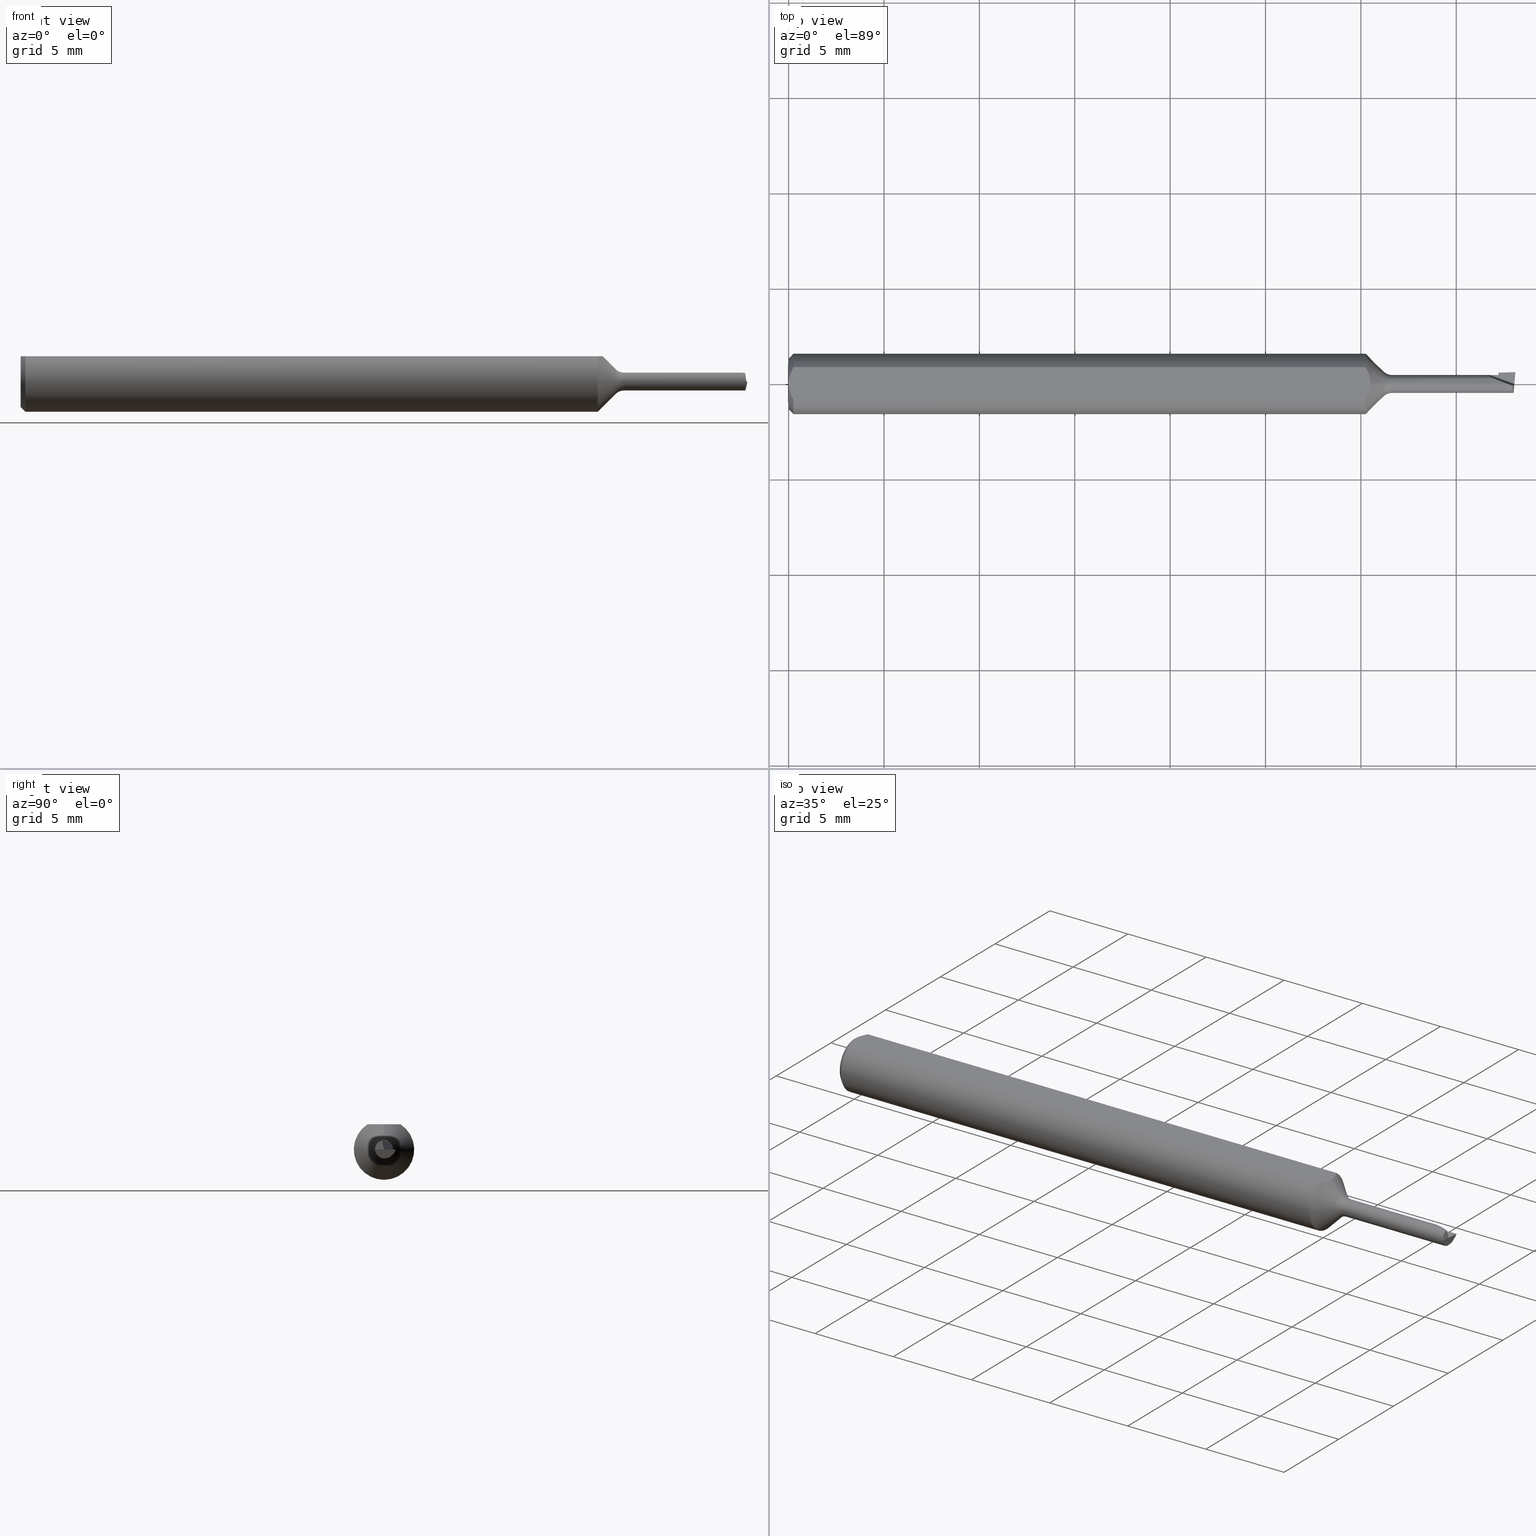
[diagram: canonical four-view strip — front | top / right | iso, engineering-drawing reading convention]
A machine part, canonical four-view strip (front | top / right | iso — engineering-drawing reading convention). The complete STEP part file that produces these views, byte-faithful:
ISO-10303-21;
HEADER;
FILE_DESCRIPTION (( 'STEP AP203' ),
    '1' );
FILE_NAME ('210052-MB045250.STEP',
    '2025-01-30T18:59:23',
    ( '' ),
    ( '' ),
    'SwSTEP 2.0',
    'SolidWorks 2024',
    '' );
FILE_SCHEMA (( 'CONFIG_CONTROL_DESIGN' ));
ENDSEC;

DATA;
#1 = PERSON_AND_ORGANIZATION ( #592, #594 ) ;
#2 = APPROVAL ( #385, 'UNSPECIFIED' ) ;
#3 = VECTOR ( 'NONE', #415, 39.37007874015748143 ) ;
#4 = AXIS2_PLACEMENT_3D ( 'NONE', #378, #527, #484 ) ;
#5 = ADVANCED_FACE ( 'NONE', ( #246 ), #192, .F. ) ;
#6 = CIRCLE ( 'NONE', #126, 0.01849999999999999908 ) ;
#7 = DIRECTION ( 'NONE',  ( -1.000000000000000000, -0.000000000000000000, -0.000000000000000000 ) ) ;
#8 = DIRECTION ( 'NONE',  ( -1.000000000000000000, -0.000000000000000000, -0.000000000000000000 ) ) ;
#9 = APPLICATION_CONTEXT ( 'configuration controlled 3d designs of mechanical parts and assemblies' ) ;
#10 = CARTESIAN_POINT ( 'NONE',  ( 1.496776916841381366, -0.001529360825625118410, 0.006704173061983520650 ) ) ;
#11 = VERTEX_POINT ( 'NONE', #97 ) ;
#12 = LINE ( 'NONE', #172, #50 ) ;
#13 = EDGE_LOOP ( 'NONE', ( #211, #333, #507, #559 ) ) ;
#14 = FACE_OUTER_BOUND ( 'NONE', #380, .T. ) ;
#15 = ORIENTED_EDGE ( 'NONE', *, *, #339, .F. ) ;
#16 = FACE_OUTER_BOUND ( 'NONE', #358, .T. ) ;
#17 = LINE ( 'NONE', #56, #162 ) ;
#18 = ORIENTED_EDGE ( 'NONE', *, *, #99, .T. ) ;
#19 = CARTESIAN_POINT ( 'NONE',  ( 1.245355339059327493, 0.000000000000000000, 0.000000000000000000 ) ) ;
#20 = DIRECTION ( 'NONE',  ( -1.000000000000000000, -0.000000000000000000, -0.000000000000000000 ) ) ;
#21 = EDGE_CURVE ( 'NONE', #289, #505, #49, .T. ) ;
#22 = ORIENTED_EDGE ( 'NONE', *, *, #72, .T. ) ;
#23 = VECTOR ( 'NONE', #586, 39.37007874015748143 ) ;
#24 = PERSON_AND_ORGANIZATION ( #592, #594 ) ;
#25 = LINE ( 'NONE', #474, #285 ) ;
#26 = DIRECTION ( 'NONE',  ( 1.000000000000000000, 0.000000000000000000, 0.000000000000000000 ) ) ;
#27 = EDGE_CURVE ( 'NONE', #630, #31, #138, .T. ) ;
#28 = ORIENTED_EDGE ( 'NONE', *, *, #291, .F. ) ;
#29 = CARTESIAN_POINT ( 'NONE',  ( 1.227677669529663618, 3.162323435702253921E-18, -0.02582233047033631948 ) ) ;
#30 = CARTESIAN_POINT ( 'NONE',  ( -1.099542139246802830E-15, 0.005954997531773979953, 0.05235000000000002152 ) ) ;
#31 = VERTEX_POINT ( 'NONE', #248 ) ;
#32 = AXIS2_PLACEMENT_3D ( 'NONE', #274, #622, #468 ) ;
#33 = DIRECTION ( 'NONE',  ( 1.000000000000000000, 0.000000000000000000, 0.000000000000000000 ) ) ;
#34 = CARTESIAN_POINT ( 'NONE',  ( 1.496684692676496731, 0.01221299988732022293, -0.01588014588061767429 ) ) ;
#35 = ORIENTED_EDGE ( 'NONE', *, *, #280, .T. ) ;
#36 = AXIS2_PLACEMENT_3D ( 'NONE', #128, #83, #337 ) ;
#37 = DIRECTION ( 'NONE',  ( 1.000000000000000000, 0.000000000000000000, 0.000000000000000000 ) ) ;
#38 = PLANE ( 'NONE',  #640 ) ;
#39 = LINE ( 'NONE', #387, #23 ) ;
#40 = ORIENTED_EDGE ( 'NONE', *, *, #602, .F. ) ;
#41 = ADVANCED_FACE ( 'NONE', ( #543 ), #400, .T. ) ;
#42 = PERSON_AND_ORGANIZATION ( #592, #594 ) ;
#43 = ORIENTED_EDGE ( 'NONE', *, *, #405, .T. ) ;
#44 = CARTESIAN_POINT ( 'NONE',  ( 1.498722803693174566, 0.02118925606886698162, -0.006999999999999996676 ) ) ;
#45 = AXIS2_PLACEMENT_3D ( 'NONE', #619, #123, #227 ) ;
#46 = PERSON_AND_ORGANIZATION_ROLE ( 'design_owner' ) ;
#47 = DIRECTION ( 'NONE',  ( 0.000000000000000000, -0.7073221891495888869, -0.7068913075831623205 ) ) ;
#48 = SECURITY_CLASSIFICATION ( '', '', #615 ) ;
#49 = LINE ( 'NONE', #438, #309 ) ;
#50 = VECTOR ( 'NONE', #102, 39.37007874015748143 ) ;
#51 = AXIS2_PLACEMENT_3D ( 'NONE', #122, #323, #521 ) ;
#52 = DIRECTION ( 'NONE',  ( 0.03162968562512429027, -0.9057556888204039147, 0.4226182617407007736 ) ) ;
#53 = EDGE_CURVE ( 'NONE', #552, #462, #114, .T. ) ;
#54 = CIRCLE ( 'NONE', #553, 0.06235000000000000264 ) ;
#55 = CARTESIAN_POINT ( 'NONE',  ( 1.227677669529663618, 0.000000000000000000, 0.000000000000000000 ) ) ;
#56 = CARTESIAN_POINT ( 'NONE',  ( 1.465000000000000080, 0.02275535369517672074, -0.004257947521761099377 ) ) ;
#57 = EDGE_LOOP ( 'NONE', ( #68, #432, #398, #562, #35 ) ) ;
#58 = CIRCLE ( 'NONE', #85, 0.05235000000000033377 ) ;
#59 = CARTESIAN_POINT ( 'NONE',  ( 1.196488788636946854, 0.02320328458619745973, 0.05235000000000002152 ) ) ;
#60 = ADVANCED_FACE ( 'NONE', ( #346 ), #205, .F. ) ;
#61 = ORIENTED_EDGE ( 'NONE', *, *, #408, .T. ) ;
#62 = DIRECTION ( 'NONE',  ( -0.000000000000000000, 1.000000000000000000, 1.150753554054429375E-16 ) ) ;
#63 = ORIENTED_EDGE ( 'NONE', *, *, #368, .F. ) ;
#64 = APPROVAL ( #412, 'UNSPECIFIED' ) ;
#65 = APPROVAL_DATE_TIME ( #169, #64 ) ;
#66 = DIRECTION ( 'NONE',  ( 0.000000000000000000, -1.000000000000000000, 0.000000000000000000 ) ) ;
#67 = DIRECTION ( 'NONE',  ( 0.000000000000000000, 0.000000000000000000, 1.000000000000000000 ) ) ;
#68 = ORIENTED_EDGE ( 'NONE', *, *, #457, .T. ) ;
#69 = DIRECTION ( 'NONE',  ( -1.000000000000000000, -0.000000000000000000, -0.000000000000000000 ) ) ;
#70 = DIRECTION ( 'NONE',  ( 0.000000000000000000, 0.000000000000000000, 1.000000000000000000 ) ) ;
#71 = VERTEX_POINT ( 'NONE', #442 ) ;
#72 = EDGE_CURVE ( 'NONE', #582, #630, #560, .T. ) ;
#73 = DIRECTION ( 'NONE',  ( 0.000000000000000000, 0.000000000000000000, -1.000000000000000000 ) ) ;
#74 = DIRECTION ( 'NONE',  ( 0.000000000000000000, 0.000000000000000000, -1.000000000000000000 ) ) ;
#75 = ORIENTED_EDGE ( 'NONE', *, *, #255, .F. ) ;
#76 = PERSON_AND_ORGANIZATION ( #592, #594 ) ;
#77 = CARTESIAN_POINT ( 'NONE',  ( 1.497855625440970062, -1.031336641982391536E-05, 2.046381266477860700E-16 ) ) ;
#78 = CARTESIAN_POINT ( 'NONE',  ( 1.496237987468385322, -0.01849999999999997133, 2.346737396167181165E-16 ) ) ;
#79 = CC_DESIGN_APPROVAL ( #64, ( #48 ) ) ;
#80 = ORIENTED_EDGE ( 'NONE', *, *, #450, .T. ) ;
#81 = VECTOR ( 'NONE', #145, 39.37007874015748143 ) ;
#82 = PLANE ( 'NONE',  #345 ) ;
#83 = DIRECTION ( 'NONE',  ( -1.000000000000000000, -0.000000000000000000, -0.000000000000000000 ) ) ;
#84 = EDGE_LOOP ( 'NONE', ( #355, #383, #220, #390, #40, #201 ) ) ;
#85 = AXIS2_PLACEMENT_3D ( 'NONE', #612, #361, #551 ) ;
#86 = EDGE_CURVE ( 'NONE', #549, #319, #590, .T. ) ;
#87 = APPROVAL_ROLE ( '' ) ;
#88 = CARTESIAN_POINT ( 'NONE',  ( 1.245355339059327493, 0.000000000000000000, 0.000000000000000000 ) ) ;
#89 = CARTESIAN_POINT ( 'NONE',  ( 0.001063697276021357847, 0.01189177144351693735, 0.05235000000000001458 ) ) ;
#90 = EDGE_LOOP ( 'NONE', ( #624, #175, #130, #28 ) ) ;
#91 = ORIENTED_EDGE ( 'NONE', *, *, #53, .F. ) ;
#92 = LENGTH_MEASURE_WITH_UNIT ( LENGTH_MEASURE( 0.02539999999999999897 ), #473 );
#93 = DIRECTION ( 'NONE',  ( 1.000000000000000000, 0.000000000000000000, 0.000000000000000000 ) ) ;
#94 = CALENDAR_DATE ( 2025, 30, 1 ) ;
#95 = ADVANCED_FACE ( 'NONE', ( #495 ), #98, .F. ) ;
#96 = CARTESIAN_POINT ( 'NONE',  ( 0.000000000000000000, 0.000000000000000000, 0.000000000000000000 ) ) ;
#97 = CARTESIAN_POINT ( 'NONE',  ( 1.494952902551172302, -0.004097954674002863944, 0.01804042038007478907 ) ) ;
#98 = PLANE ( 'NONE',  #203 ) ;
#99 = EDGE_CURVE ( 'NONE', #237, #289, #296, .T. ) ;
#100 = CARTESIAN_POINT ( 'NONE',  ( 1.495388239854692269, 0.001619057209963981015, -0.01849999999999998521 ) ) ;
#101 = ADVANCED_FACE ( 'NONE', ( #597 ), #164, .T. ) ;
#102 = DIRECTION ( 'NONE',  ( -1.000000000000000000, -0.000000000000000000, -0.000000000000000000 ) ) ;
#103 = ORIENTED_EDGE ( 'NONE', *, *, #222, .T. ) ;
#104 = ADVANCED_FACE ( 'NONE', ( #598 ), #642, .F. ) ;
#105 = DIRECTION ( 'NONE',  ( -1.000000000000000000, -0.000000000000000000, -0.000000000000000000 ) ) ;
#106 = VERTEX_POINT ( 'NONE', #44 ) ;
#107 = CYLINDRICAL_SURFACE ( 'NONE', #221, 0.06235000000000000264 ) ;
#108 = ADVANCED_FACE ( 'NONE', ( #208 ), #550, .F. ) ;
#109 = VECTOR ( 'NONE', #522, 39.37007874015748143 ) ;
#110 = VERTEX_POINT ( 'NONE', #391 ) ;
#111 = PERSON_AND_ORGANIZATION_ROLE ( 'design_supplier' ) ;
#112 = DIRECTION ( 'NONE',  ( -1.000000000000000000, -0.000000000000000000, -0.000000000000000000 ) ) ;
#113 = VERTEX_POINT ( 'NONE', #540 ) ;
#114 = B_SPLINE_CURVE_WITH_KNOTS ( 'NONE', 3,
 ( #293, #396, #146, #250, #547, #593 ),
 .UNSPECIFIED., .F., .F.,
 ( 4, 2, 4 ),
 ( 0.001820301466808207621, 0.002269751589840481119, 0.002719201712872754834 ),
 .UNSPECIFIED. ) ;
#115 = DIRECTION ( 'NONE',  ( 0.000000000000000000, 0.000000000000000000, 1.000000000000000000 ) ) ;
#116 = DIRECTION ( 'NONE',  ( -0.7071067811865451302, 8.659560562354962440E-17, -0.7071067811865499042 ) ) ;
#117 = ORIENTED_EDGE ( 'NONE', *, *, #255, .T. ) ;
#118 = EDGE_CURVE ( 'NONE', #630, #113, #12, .T. ) ;
#119 = DIRECTION ( 'NONE',  ( 0.000000000000000000, 0.000000000000000000, -1.000000000000000000 ) ) ;
#120 = DIRECTION ( 'NONE',  ( -0.08715574274765616747, -0.9961946980917456562, -1.468785387815777068E-15 ) ) ;
#121 = ORIENTED_EDGE ( 'NONE', *, *, #21, .T. ) ;
#122 = CARTESIAN_POINT ( 'NONE',  ( 1.465000000000000080, 0.01849999999999999908, 0.000000000000000000 ) ) ;
#123 = DIRECTION ( 'NONE',  ( 0.000000000000000000, 0.2588190451025212391, -0.9659258262890682012 ) ) ;
#124 = DIRECTION ( 'NONE',  ( 0.000000000000000000, 0.000000000000000000, -1.000000000000000000 ) ) ;
#125 = EDGE_LOOP ( 'NONE', ( #22, #273, #209, #574, #18, #121, #516, #134 ) ) ;
#126 = AXIS2_PLACEMENT_3D ( 'NONE', #282, #370, #478 ) ;
#127 = CARTESIAN_POINT ( 'NONE',  ( 1.227677669529663618, 0.000000000000000000, 0.02582233047033631948 ) ) ;
#128 = CARTESIAN_POINT ( 'NONE',  ( 1.191150000000000153, 0.000000000000000000, 0.000000000000000000 ) ) ;
#129 = LOCAL_TIME ( 10, 59, 23.00000000000000000, #423 ) ;
#130 = ORIENTED_EDGE ( 'NONE', *, *, #99, .F. ) ;
#131 = CARTESIAN_POINT ( 'NONE',  ( 0.000000000000000000, 0.000000000000000000, 0.000000000000000000 ) ) ;
#132 = LINE ( 'NONE', #616, #467 ) ;
#133 = DIRECTION ( 'NONE',  ( 1.000000000000000000, 0.000000000000000000, 0.000000000000000000 ) ) ;
#134 = ORIENTED_EDGE ( 'NONE', *, *, #234, .F. ) ;
#135 = VECTOR ( 'NONE', #366, 39.37007874015748143 ) ;
#136 = COORDINATED_UNIVERSAL_TIME_OFFSET ( 8, 0, .BEHIND. ) ;
#137 = CARTESIAN_POINT ( 'NONE',  ( 0.000000000000000000, 0.000000000000000000, -0.05235000000000033377 ) ) ;
#138 =( BOUNDED_CURVE ( )  B_SPLINE_CURVE ( 3, ( #197, #253, #393, #200 ),
 .UNSPECIFIED., .F., .T. ) 
 B_SPLINE_CURVE_WITH_KNOTS ( ( 4, 4 ),
 ( 5.728084607564617237, 7.298880934359527117 ),
 .UNSPECIFIED. ) 
 CURVE ( )  GEOMETRIC_REPRESENTATION_ITEM ( )  RATIONAL_B_SPLINE_CURVE ( ( 1.000000000000000000, 0.8047378541243618288, 0.8047378541243618288, 1.000000000000000000 ) ) 
 REPRESENTATION_ITEM ( '' )  );
#139 = ORIENTED_EDGE ( 'NONE', *, *, #602, .T. ) ;
#140 = EDGE_CURVE ( 'NONE', #608, #448, #17, .T. ) ;
#141 = APPROVAL_STATUS ( 'not_yet_approved' ) ;
#142 = DIRECTION ( 'NONE',  ( -1.000000000000000000, -0.000000000000000000, -0.000000000000000000 ) ) ;
#143 = EDGE_CURVE ( 'NONE', #367, #352, #354, .T. ) ;
#144 =( CONVERSION_BASED_UNIT ( 'INCH', #92 ) LENGTH_UNIT ( ) NAMED_UNIT ( #411 ) );
#145 = DIRECTION ( 'NONE',  ( -0.7071067811865451302, 0.000000000000000000, 0.7071067811865499042 ) ) ;
#146 = CARTESIAN_POINT ( 'NONE',  ( 0.001055043921644571291, -0.01186408073217194367, 0.05235000000000002152 ) ) ;
#147 = PRODUCT_DEFINITION_SHAPE ( 'NONE', 'NONE',  #214 ) ;
#148 = CARTESIAN_POINT ( 'NONE',  ( 1.438508876927481195, 0.01849999999999999908, 0.01083704909609776133 ) ) ;
#149 = CARTESIAN_POINT ( 'NONE',  ( 1.483333815684383605, 0.000000000000000000, 0.01849999999999999215 ) ) ;
#150 = ADVANCED_FACE ( 'NONE', ( #257 ), #107, .T. ) ;
#151 = ORIENTED_EDGE ( 'NONE', *, *, #195, .T. ) ;
#152 = B_SPLINE_CURVE_WITH_KNOTS ( 'NONE', 3,
 ( #275, #469, #465, #89, #30, #581 ),
 .UNSPECIFIED., .F., .F.,
 ( 4, 2, 4 ),
 ( 0.0009229516234078821539, 0.001371626545108044996, 0.001820301466808207621 ),
 .UNSPECIFIED. ) ;
#153 = CARTESIAN_POINT ( 'NONE',  ( 1.245355339059327493, 0.000000000000000000, 0.000000000000000000 ) ) ;
#154 = ORIENTED_EDGE ( 'NONE', *, *, #341, .F. ) ;
#155 = AXIS2_PLACEMENT_3D ( 'NONE', #177, #321, #431 ) ;
#156 = LINE ( 'NONE', #307, #251 ) ;
#157 = EDGE_LOOP ( 'NONE', ( #480, #161, #217, #300 ) ) ;
#158 = EDGE_CURVE ( 'NONE', #621, #11, #224, .T. ) ;
#159 = PRODUCT_DEFINITION_FORMATION_WITH_SPECIFIED_SOURCE ( 'ANY', '', #546, .NOT_KNOWN. ) ;
#160 = CARTESIAN_POINT ( 'NONE',  ( 1.201150000000000162, -1.477726050556335798E-21, 0.05235000000000001458 ) ) ;
#161 = ORIENTED_EDGE ( 'NONE', *, *, #247, .T. ) ;
#162 = VECTOR ( 'NONE', #305, 39.37007874015748854 ) ;
#163 = PERSON_AND_ORGANIZATION_ROLE ( 'creator' ) ;
#164 = CONICAL_SURFACE ( 'NONE', #625, 0.02582233047033630560, 0.7853981633974517207 ) ;
#165 = CARTESIAN_POINT ( 'NONE',  ( 1.191150000000000153, 0.03386738844375220686, 0.05235000000000000070 ) ) ;
#166 = CIRCLE ( 'NONE', #4, 0.06235000000000000264 ) ;
#167 = EDGE_LOOP ( 'NONE', ( #329, #15, #556, #259, #363 ) ) ;
#168 = LOCAL_TIME ( 10, 59, 23.00000000000000000, #286 ) ;
#169 = DATE_AND_TIME ( #508, #299 ) ;
#170 = DIRECTION ( 'NONE',  ( 0.000000000000000000, 0.000000000000000000, 1.000000000000000000 ) ) ;
#171 = CARTESIAN_POINT ( 'NONE',  ( 1.191150000000000153, -0.03386738844375220686, 0.05235000000000000070 ) ) ;
#172 = CARTESIAN_POINT ( 'NONE',  ( 0.000000000000000000, 2.265596578422602268E-18, -0.01849999999999999215 ) ) ;
#173 = CIRCLE ( 'NONE', #536, 0.05235000000000033377 ) ;
#174 = EDGE_CURVE ( 'NONE', #237, #426, #565, .T. ) ;
#175 = ORIENTED_EDGE ( 'NONE', *, *, #599, .F. ) ;
#176 = CARTESIAN_POINT ( 'NONE',  ( 0.000000000000000000, 0.000000000000000000, 0.000000000000000000 ) ) ;
#177 = CARTESIAN_POINT ( 'NONE',  ( 1.491155917282976695, 0.03518992960932577213, 0.06931876481191026618 ) ) ;
#178 = ORIENTED_EDGE ( 'NONE', *, *, #140, .F. ) ;
#179 = CARTESIAN_POINT ( 'NONE',  ( 1.201149999999999718, -0.005924734429433293689, 0.05235000000000002152 ) ) ;
#180 = LINE ( 'NONE', #379, #618 ) ;
#181 = ORIENTED_EDGE ( 'NONE', *, *, #341, .T. ) ;
#182 = CARTESIAN_POINT ( 'NONE',  ( 1.201150000000000162, -1.477726050556335798E-21, 0.05235000000000001458 ) ) ;
#183 = DIRECTION ( 'NONE',  ( -0.000000000000000000, 0.9659258262890682012, 0.2588190451025212946 ) ) ;
#184 = ORIENTED_EDGE ( 'NONE', *, *, #626, .T. ) ;
#185 = CC_DESIGN_DATE_AND_TIME_ASSIGNMENT ( #472, #226, ( #48 ) ) ;
#186 = DIRECTION ( 'NONE',  ( -1.000000000000000000, -0.000000000000000000, -0.000000000000000000 ) ) ;
#187 = CARTESIAN_POINT ( 'NONE',  ( 1.245355339059327493, 0.000000000000000000, 0.01849999999999998174 ) ) ;
#188 = ORIENTED_EDGE ( 'NONE', *, *, #489, .F. ) ;
#189 = DATE_TIME_ROLE ( 'creation_date' ) ;
#190 = FACE_OUTER_BOUND ( 'NONE', #538, .T. ) ;
#191 = DIRECTION ( 'NONE',  ( 0.1201445221440181205, 0.9589290576775757469, 0.2569442666034444378 ) ) ;
#192 = PLANE ( 'NONE',  #357 ) ;
#193 = APPROVAL_DATE_TIME ( #243, #548 ) ;
#194 = DIRECTION ( 'NONE',  ( -1.000000000000000000, 0.000000000000000000, -0.000000000000000000 ) ) ;
#195 = EDGE_CURVE ( 'NONE', #476, #113, #359, .T. ) ;
#196 = VECTOR ( 'NONE', #62, 39.37007874015748143 ) ;
#197 = CARTESIAN_POINT ( 'NONE',  ( 1.495246590703220857, 2.265596578422602268E-18, -0.01849999999999999215 ) ) ;
#198 = CC_DESIGN_SECURITY_CLASSIFICATION ( #48, ( #159 ) ) ;
#199 = DATE_AND_TIME ( #336, #607 ) ;
#200 = CARTESIAN_POINT ( 'NONE',  ( 1.496237987468385322, -0.01849999999999997133, 2.346737396167181165E-16 ) ) ;
#201 = ORIENTED_EDGE ( 'NONE', *, *, #269, .F. ) ;
#202 = UNCERTAINTY_MEASURE_WITH_UNIT (LENGTH_MEASURE( 1.000000000000000082E-05 ), #144, 'distance_accuracy_value', 'NONE');
#203 = AXIS2_PLACEMENT_3D ( 'NONE', #490, #252, #444 ) ;
#204 = EDGE_CURVE ( 'NONE', #476, #634, #310, .T. ) ;
#205 = PLANE ( 'NONE',  #330 ) ;
#206 = AXIS2_PLACEMENT_3D ( 'NONE', #485, #20, #70 ) ;
#207 = PRODUCT_RELATED_PRODUCT_CATEGORY ( 'detail', '', ( #546 ) ) ;
#208 = FACE_OUTER_BOUND ( 'NONE', #84, .T. ) ;
#209 = ORIENTED_EDGE ( 'NONE', *, *, #503, .F. ) ;
#210 = DIRECTION ( 'NONE',  ( -1.000000000000000000, 0.000000000000000000, 0.000000000000000000 ) ) ;
#211 = ORIENTED_EDGE ( 'NONE', *, *, #421, .F. ) ;
#212 = CARTESIAN_POINT ( 'NONE',  ( 1.560200597524541877, 0.004788152334396648772, -0.01786962778634774984 ) ) ;
#213 = ORIENTED_EDGE ( 'NONE', *, *, #450, .F. ) ;
#214 = PRODUCT_DEFINITION ( 'UNKNOWN', '', #159, #644 ) ;
#215 = AXIS2_PLACEMENT_3D ( 'NONE', #266, #66, #73 ) ;
#216 = DIRECTION ( 'NONE',  ( 0.000000000000000000, -1.224646799147353207E-16, 1.000000000000000000 ) ) ;
#217 = ORIENTED_EDGE ( 'NONE', *, *, #481, .F. ) ;
#218 = PERSON_AND_ORGANIZATION ( #592, #594 ) ;
#219 = CARTESIAN_POINT ( 'NONE',  ( 1.483333815684383605, 0.000000000000000000, 0.01849999999999999215 ) ) ;
#220 = ORIENTED_EDGE ( 'NONE', *, *, #53, .T. ) ;
#221 = AXIS2_PLACEMENT_3D ( 'NONE', #502, #606, #401 ) ;
#222 = EDGE_CURVE ( 'NONE', #549, #476, #583, .T. ) ;
#223 = FACE_OUTER_BOUND ( 'NONE', #13, .T. ) ;
#224 = LINE ( 'NONE', #10, #135 ) ;
#225 = ORIENTED_EDGE ( 'NONE', *, *, #402, .T. ) ;
#226 = DATE_TIME_ROLE ( 'classification_date' ) ;
#227 = DIRECTION ( 'NONE',  ( 0.000000000000000000, 0.9659258262890682012, 0.2588190451025212391 ) ) ;
#228 = CARTESIAN_POINT ( 'NONE',  ( 1.465000000000000080, 0.02242357863109861044, -0.001830709982111567661 ) ) ;
#229 = EDGE_LOOP ( 'NONE', ( #284, #470, #459, #422 ) ) ;
#230 = SHAPE_DEFINITION_REPRESENTATION ( #147, #487 ) ;
#231 = CARTESIAN_POINT ( 'NONE',  ( 1.227677669529663618, 0.000000000000000000, 0.000000000000000000 ) ) ;
#232 = FACE_OUTER_BOUND ( 'NONE', #496, .T. ) ;
#233 = ORIENTED_EDGE ( 'NONE', *, *, #143, .T. ) ;
#234 = EDGE_CURVE ( 'NONE', #582, #486, #452, .T. ) ;
#235 = LINE ( 'NONE', #569, #295 ) ;
#236 = CARTESIAN_POINT ( 'NONE',  ( 1.494952902551172302, -0.004097954674002863944, 0.01804042038007478907 ) ) ;
#237 = VERTEX_POINT ( 'NONE', #506 ) ;
#238 =( NAMED_UNIT ( * ) PLANE_ANGLE_UNIT ( ) SI_UNIT ( $, .RADIAN. ) );
#239 = CARTESIAN_POINT ( 'NONE',  ( 0.01000000000000840841, -0.03386738844395137393, 0.05235000000000001458 ) ) ;
#240 = CARTESIAN_POINT ( 'NONE',  ( 1.465000000000000080, 0.02204888731940269492, -0.01324462778634774400 ) ) ;
#241 = ORIENTED_EDGE ( 'NONE', *, *, #421, .T. ) ;
#242 = AXIS2_PLACEMENT_3D ( 'NONE', #561, #112, #67 ) ;
#243 = DATE_AND_TIME ( #436, #168 ) ;
#244 = CARTESIAN_POINT ( 'NONE',  ( 1.495443673491787084, 0.02831007852008725692, -0.03465938240595493186 ) ) ;
#245 = DIRECTION ( 'NONE',  ( -0.08715574274766034468, -0.9961946980917453232, -1.182878904194726503E-16 ) ) ;
#246 = FACE_OUTER_BOUND ( 'NONE', #604, .T. ) ;
#247 = EDGE_CURVE ( 'NONE', #110, #106, #156, .T. ) ;
#248 = CARTESIAN_POINT ( 'NONE',  ( 1.496237987468385322, -0.01849999999999997133, 2.346737396167181165E-16 ) ) ;
#249 = AXIS2_PLACEMENT_3D ( 'NONE', #231, #69, #320 ) ;
#250 = CARTESIAN_POINT ( 'NONE',  ( 0.004679365186825695105, -0.02325953974091124477, 0.05235000000000000764 ) ) ;
#251 = VECTOR ( 'NONE', #555, 39.37007874015747433 ) ;
#252 = DIRECTION ( 'NONE',  ( -0.3303660895493409355, -0.9076733711903737234, -0.2588190451025175753 ) ) ;
#253 = CARTESIAN_POINT ( 'NONE',  ( 1.494298471761238423, -0.01083704909609781511, -0.01850000000000000949 ) ) ;
#254 = VECTOR ( 'NONE', #183, 39.37007874015747433 ) ;
#255 = EDGE_CURVE ( 'NONE', #456, #552, #58, .T. ) ;
#256 = CARTESIAN_POINT ( 'NONE',  ( 0.000000000000000000, 0.000000000000000000, 0.01849999999999999215 ) ) ;
#257 = FACE_OUTER_BOUND ( 'NONE', #410, .T. ) ;
#258 = EDGE_CURVE ( 'NONE', #113, #426, #427, .T. ) ;
#259 = ORIENTED_EDGE ( 'NONE', *, *, #280, .F. ) ;
#260 = AXIS2_PLACEMENT_3D ( 'NONE', #96, #142, #499 ) ;
#261 = CONICAL_SURFACE ( 'NONE', #413, 0.05235000000000033377, 0.7853981633974376209 ) ;
#262 = CARTESIAN_POINT ( 'NONE',  ( 1.201150000000000162, 0.005920815533601037767, 0.05235000000000002152 ) ) ;
#263 = ORIENTED_EDGE ( 'NONE', *, *, #204, .F. ) ;
#264 = CARTESIAN_POINT ( 'NONE',  ( 1.491015288325890253, -0.002751962849509065681, 0.01834616788330072426 ) ) ;
#265 = ORIENTED_EDGE ( 'NONE', *, *, #339, .T. ) ;
#266 = CARTESIAN_POINT ( 'NONE',  ( 1.245355339059327493, 0.000000000000000000, 0.04350000000000000394 ) ) ;
#267 = CARTESIAN_POINT ( 'NONE',  ( 1.201150000000000162, -1.477726050556335798E-21, 0.05235000000000001458 ) ) ;
#268 = ORIENTED_EDGE ( 'NONE', *, *, #174, .T. ) ;
#269 = EDGE_CURVE ( 'NONE', #352, #319, #509, .T. ) ;
#270 = CARTESIAN_POINT ( 'NONE',  ( 1.465000000000000080, 0.01849999999999999215, -6.508939666095427711E-17 ) ) ;
#271 = LINE ( 'NONE', #228, #392 ) ;
#272 = LOCAL_TIME ( 10, 59, 23.00000000000000000, #292 ) ;
#273 = ORIENTED_EDGE ( 'NONE', *, *, #118, .T. ) ;
#274 = CARTESIAN_POINT ( 'NONE',  ( 0.009999999999999887451, 0.000000000000000000, 0.000000000000000000 ) ) ;
#275 = CARTESIAN_POINT ( 'NONE',  ( 0.009999999999999890921, 0.03386738844375217911, 0.05235000000000001458 ) ) ;
#276 = VERTEX_POINT ( 'NONE', #511 ) ;
#277 = APPLICATION_CONTEXT ( 'configuration controlled 3d designs of mechanical parts and assemblies' ) ;
#278 = DIRECTION ( 'NONE',  ( 0.9993908270190960952, 0.03489949670248750080, -0.000000000000000000 ) ) ;
#279 = CYLINDRICAL_SURFACE ( 'NONE', #364, 0.01849999999999999215 ) ;
#280 = EDGE_CURVE ( 'NONE', #505, #71, #318, .T. ) ;
#281 = ORIENTED_EDGE ( 'NONE', *, *, #195, .F. ) ;
#282 = CARTESIAN_POINT ( 'NONE',  ( 1.465000000000000080, 0.000000000000000000, 0.000000000000000000 ) ) ;
#283 = CARTESIAN_POINT ( 'NONE',  ( 0.000000000000000000, -0.03386738844375220686, 0.05235000000000000070 ) ) ;
#284 = ORIENTED_EDGE ( 'NONE', *, *, #611, .F. ) ;
#285 = VECTOR ( 'NONE', #424, 39.37007874015748854 ) ;
#286 = COORDINATED_UNIVERSAL_TIME_OFFSET ( 8, 0, .BEHIND. ) ;
#287 = DIRECTION ( 'NONE',  ( -0.9864997997699066490, 0.08630754905045856518, 0.1391731009600517543 ) ) ;
#288 = CARTESIAN_POINT ( 'NONE',  ( 1.494465960141844629, -0.01288082332125571258, 0.01604535613734156194 ) ) ;
#289 = VERTEX_POINT ( 'NONE', #356 ) ;
#290 = ORIENTED_EDGE ( 'NONE', *, *, #86, .F. ) ;
#291 = EDGE_CURVE ( 'NONE', #11, #237, #451, .T. ) ;
#292 = COORDINATED_UNIVERSAL_TIME_OFFSET ( 8, 0, .BEHIND. ) ;
#293 = CARTESIAN_POINT ( 'NONE',  ( 0.000000000000000000, 0.000000000000000000, 0.05235000000000033377 ) ) ;
#294 = CARTESIAN_POINT ( 'NONE',  ( 1.418295385203593328, 0.06789885579794455173, -9.160938846980685724E-22 ) ) ;
#295 = VECTOR ( 'NONE', #327, 39.37007874015748143 ) ;
#296 =( BOUNDED_CURVE ( )  B_SPLINE_CURVE ( 3, ( #149, #447, #148, #347 ),
 .UNSPECIFIED., .F., .F. ) 
 B_SPLINE_CURVE_WITH_KNOTS ( ( 4, 4 ),
 ( 4.990162771046300350, 6.560959097841200460 ),
 .UNSPECIFIED. ) 
 CURVE ( )  GEOMETRIC_REPRESENTATION_ITEM ( )  RATIONAL_B_SPLINE_CURVE ( ( 1.000000000000000000, 0.8047378541243641603, 0.8047378541243641603, 1.000000000000000000 ) ) 
 REPRESENTATION_ITEM ( '' )  );
#297 = DIRECTION ( 'NONE',  ( 4.188400406518391045E-17, 1.150753554054429375E-16, -1.000000000000000000 ) ) ;
#298 = CC_DESIGN_DATE_AND_TIME_ASSIGNMENT ( #635, #189, ( #214 ) ) ;
#299 = LOCAL_TIME ( 10, 59, 23.00000000000000000, #313 ) ;
#300 = ORIENTED_EDGE ( 'NONE', *, *, #457, .F. ) ;
#301 = CARTESIAN_POINT ( 'NONE',  ( 1.460024366919236094, 0.02310402013190050036, -1.572938430745744944E-18 ) ) ;
#302 = CARTESIAN_POINT ( 'NONE',  ( 1.500000000000000222, 0.06235000000000000264, 0.05235000000000001458 ) ) ;
#303 = TOROIDAL_SURFACE ( 'NONE', #206, 0.04350000000000000394, 0.02500000000000001874 ) ;
#304 = CC_DESIGN_PERSON_AND_ORGANIZATION_ASSIGNMENT ( #76, #627, ( #48 ) ) ;
#305 = DIRECTION ( 'NONE',  ( 0.000000000000000000, -0.7073221891495888869, -0.7068913075831623205 ) ) ;
#306 = ORIENTED_EDGE ( 'NONE', *, *, #27, .T. ) ;
#307 = CARTESIAN_POINT ( 'NONE',  ( 1.498845433956495388, 0.02150713782118080994, -0.006327893575437197257 ) ) ;
#308 = ORIENTED_EDGE ( 'NONE', *, *, #481, .T. ) ;
#309 = VECTOR ( 'NONE', #93, 39.37007874015748143 ) ;
#310 = LINE ( 'NONE', #603, #504 ) ;
#311 = ADVANCED_FACE ( 'NONE', ( #14 ), #439, .T. ) ;
#312 = ORIENTED_EDGE ( 'NONE', *, *, #554, .F. ) ;
#313 = COORDINATED_UNIVERSAL_TIME_OFFSET ( 8, 0, .BEHIND. ) ;
#314 = AXIS2_PLACEMENT_3D ( 'NONE', #620, #26, #74 ) ;
#315 = CARTESIAN_POINT ( 'NONE',  ( 1.193992034642578748, 0.02863519109676619309, 0.05235000000000002152 ) ) ;
#316 = ORIENTED_EDGE ( 'NONE', *, *, #489, .T. ) ;
#317 = CARTESIAN_POINT ( 'NONE',  ( 1.465000000000000080, 0.02001162981448263017, -0.006999999999999996676 ) ) ;
#318 = LINE ( 'NONE', #455, #196 ) ;
#319 = VERTEX_POINT ( 'NONE', #267 ) ;
#320 = DIRECTION ( 'NONE',  ( 0.000000000000000000, 0.000000000000000000, 1.000000000000000000 ) ) ;
#321 = DIRECTION ( 'NONE',  ( 0.9864997997699033183, -0.08630754905047478831, 0.1391731009600657154 ) ) ;
#322 = ORIENTED_EDGE ( 'NONE', *, *, #368, .T. ) ;
#323 = DIRECTION ( 'NONE',  ( 1.000000000000000000, 0.000000000000000000, 0.000000000000000000 ) ) ;
#324 = CARTESIAN_POINT ( 'NONE',  ( 0.000000000000000000, 0.000000000000000000, -0.05235000000000033377 ) ) ;
#325 = CIRCLE ( 'NONE', #36, 0.06235000000000000264 ) ;
#326 = ORIENTED_EDGE ( 'NONE', *, *, #204, .T. ) ;
#327 = DIRECTION ( 'NONE',  ( -0.9987822236179720869, -0.04765519936432637688, -0.01276917218481542736 ) ) ;
#328 = DIRECTION ( 'NONE',  ( -1.000000000000000000, -0.000000000000000000, -0.000000000000000000 ) ) ;
#329 = ORIENTED_EDGE ( 'NONE', *, *, #599, .T. ) ;
#330 = AXIS2_PLACEMENT_3D ( 'NONE', #294, #297, #497 ) ;
#331 = DIRECTION ( 'NONE',  ( 0.1396943646708782849, 0.000000000000000000, 0.9901946699913101169 ) ) ;
#332 = LINE ( 'NONE', #283, #399 ) ;
#333 = ORIENTED_EDGE ( 'NONE', *, *, #234, .T. ) ;
#334 = AXIS2_PLACEMENT_3D ( 'NONE', #88, #369, #170 ) ;
#335 = EDGE_CURVE ( 'NONE', #486, #448, #461, .T. ) ;
#336 = CALENDAR_DATE ( 2025, 30, 1 ) ;
#337 = DIRECTION ( 'NONE',  ( 0.000000000000000000, 0.000000000000000000, 1.000000000000000000 ) ) ;
#338 = ORIENTED_EDGE ( 'NONE', *, *, #27, .F. ) ;
#339 = EDGE_CURVE ( 'NONE', #110, #621, #180, .T. ) ;
#340 = DIRECTION ( 'NONE',  ( 0.000000000000000000, 0.000000000000000000, -1.000000000000000000 ) ) ;
#341 = EDGE_CURVE ( 'NONE', #621, #31, #425, .T. ) ;
#342 = APPLICATION_PROTOCOL_DEFINITION ( 'international standard', 'config_control_design', 1994, #277 ) ;
#343 = AXIS2_PLACEMENT_3D ( 'NONE', #403, #8, #406 ) ;
#344 = DIRECTION ( 'NONE',  ( 0.000000000000000000, -0.4228298219691071225, -0.9062091048171900809 ) ) ;
#345 = AXIS2_PLACEMENT_3D ( 'NONE', #414, #33, #119 ) ;
#346 = FACE_OUTER_BOUND ( 'NONE', #167, .T. ) ;
#347 = CARTESIAN_POINT ( 'NONE',  ( 1.446998957439701083, 0.01849999999999998521, -4.483286445232968331E-18 ) ) ;
#348 = CARTESIAN_POINT ( 'NONE',  ( 1.495754431199804557, 0.004788152334396648772, -0.01786962778634774984 ) ) ;
#349 = ORIENTED_EDGE ( 'NONE', *, *, #118, .F. ) ;
#350 = ADVANCED_FACE ( 'NONE', ( #232 ), #623, .T. ) ;
#351 = CARTESIAN_POINT ( 'NONE',  ( 1.494952902551172302, -0.004097954674002863944, 0.01804042038007478907 ) ) ;
#352 = VERTEX_POINT ( 'NONE', #420 ) ;
#353 = CIRCLE ( 'NONE', #249, 0.02582233047033630560 ) ;
#354 = LINE ( 'NONE', #557, #3 ) ;
#355 = ORIENTED_EDGE ( 'NONE', *, *, #143, .F. ) ;
#356 = CARTESIAN_POINT ( 'NONE',  ( 1.446998957439701083, 0.01849999999999998521, -4.483286445232968331E-18 ) ) ;
#357 = AXIS2_PLACEMENT_3D ( 'NONE', #435, #639, #47 ) ;
#358 = EDGE_LOOP ( 'NONE', ( #225, #117 ) ) ;
#359 = CIRCLE ( 'NONE', #610, 0.02500000000000001874 ) ;
#360 = AXIS2_PLACEMENT_3D ( 'NONE', #131, #631, #37 ) ;
#361 = DIRECTION ( 'NONE',  ( -1.000000000000000000, -0.000000000000000000, -0.000000000000000000 ) ) ;
#362 = EDGE_CURVE ( 'NONE', #367, #552, #152, .T. ) ;
#363 = ORIENTED_EDGE ( 'NONE', *, *, #21, .F. ) ;
#364 = AXIS2_PLACEMENT_3D ( 'NONE', #528, #475, #371 ) ;
#365 = CARTESIAN_POINT ( 'NONE',  ( 1.460138284237282980, 0.01984185495899845955, -0.006999999999999996676 ) ) ;
#366 = DIRECTION ( 'NONE',  ( -0.1550261498412155714, -0.2183092626835797800, 0.9634873941531153507 ) ) ;
#367 = VERTEX_POINT ( 'NONE', #573 ) ;
#368 = EDGE_CURVE ( 'NONE', #462, #577, #54, .T. ) ;
#369 = DIRECTION ( 'NONE',  ( -1.000000000000000000, -0.000000000000000000, -0.000000000000000000 ) ) ;
#370 = DIRECTION ( 'NONE',  ( -1.000000000000000000, -0.000000000000000000, -0.000000000000000000 ) ) ;
#371 = DIRECTION ( 'NONE',  ( 0.000000000000000000, 0.000000000000000000, 1.000000000000000000 ) ) ;
#372 = ORIENTED_EDGE ( 'NONE', *, *, #258, .F. ) ;
#373 = ADVANCED_FACE ( 'NONE', ( #375 ), #482, .T. ) ;
#374 = CARTESIAN_POINT ( 'NONE',  ( 1.200078879331740067, -0.01191647624495714534, 0.05235000000000002152 ) ) ;
#375 = FACE_OUTER_BOUND ( 'NONE', #229, .T. ) ;
#376 =( GEOMETRIC_REPRESENTATION_CONTEXT ( 3 ) GLOBAL_UNCERTAINTY_ASSIGNED_CONTEXT ( ( #202 ) ) GLOBAL_UNIT_ASSIGNED_CONTEXT ( ( #144, #238, #483 ) ) REPRESENTATION_CONTEXT ( 'NONE', 'WORKASPACE' ) );
#377 = ORIENTED_EDGE ( 'NONE', *, *, #158, .T. ) ;
#378 = CARTESIAN_POINT ( 'NONE',  ( 1.191150000000000153, 0.000000000000000000, 0.000000000000000000 ) ) ;
#379 = CARTESIAN_POINT ( 'NONE',  ( 1.497856527743614885, 5.157748590581906026E-34, -4.482061838879143203E-18 ) ) ;
#380 = EDGE_LOOP ( 'NONE', ( #103, #326, #587, #535, #290 ) ) ;
#381 = CARTESIAN_POINT ( 'NONE',  ( 1.496688055231696124, 0.01223983799721654366, -0.01587295463074458318 ) ) ;
#382 = EDGE_CURVE ( 'NONE', #11, #31, #513, .T. ) ;
#383 = ORIENTED_EDGE ( 'NONE', *, *, #362, .T. ) ;
#384 = MANIFOLD_SOLID_BREP ( 'Cut-Extrude8', #395 ) ;
#385 = APPROVAL_STATUS ( 'not_yet_approved' ) ;
#386 = CARTESIAN_POINT ( 'NONE',  ( 1.191150000000000153, 7.635672792683746671E-18, -0.06235000000000000264 ) ) ;
#387 = CARTESIAN_POINT ( 'NONE',  ( 1.497591963102740786, 0.01621548884024825304, -0.01193127157655284563 ) ) ;
#388 = VECTOR ( 'NONE', #210, 39.37007874015748143 ) ;
#389 = CC_DESIGN_PERSON_AND_ORGANIZATION_ASSIGNMENT ( #542, #441, ( #214 ) ) ;
#390 = ORIENTED_EDGE ( 'NONE', *, *, #408, .F. ) ;
#391 = CARTESIAN_POINT ( 'NONE',  ( 1.500000000000000222, 0.02450000000000000094, -2.134256245050205639E-18 ) ) ;
#392 = VECTOR ( 'NONE', #570, 39.37007874015748854 ) ;
#393 = CARTESIAN_POINT ( 'NONE',  ( 1.494709121747062275, -0.01850000000000011705, -0.01083704909609763470 ) ) ;
#394 = ADVANCED_FACE ( 'NONE', ( #523 ), #279, .T. ) ;
#395 = CLOSED_SHELL ( 'NONE', ( #588, #311, #440, #41, #95, #394, #645, #641, #101, #150, #591, #373, #60, #524, #104, #5, #638, #350, #108 ) ) ;
#396 = CARTESIAN_POINT ( 'NONE',  ( -1.070637973615595603E-15, -0.005965286321711177862, 0.05235000000000002152 ) ) ;
#397 = CARTESIAN_POINT ( 'NONE',  ( 1.495558491035186899, 0.003224263161052951139, -0.01828867062739697111 ) ) ;
#398 = ORIENTED_EDGE ( 'NONE', *, *, #335, .F. ) ;
#399 = VECTOR ( 'NONE', #479, 39.37007874015748143 ) ;
#400 = CYLINDRICAL_SURFACE ( 'NONE', #260, 0.01849999999999999215 ) ;
#401 = DIRECTION ( 'NONE',  ( 0.000000000000000000, 0.000000000000000000, 1.000000000000000000 ) ) ;
#402 = EDGE_CURVE ( 'NONE', #552, #456, #173, .T. ) ;
#403 = CARTESIAN_POINT ( 'NONE',  ( 1.227677669529663618, 0.000000000000000000, 0.000000000000000000 ) ) ;
#404 = ORIENTED_EDGE ( 'NONE', *, *, #382, .T. ) ;
#405 = EDGE_CURVE ( 'NONE', #352, #634, #325, .T. ) ;
#406 = DIRECTION ( 'NONE',  ( 0.000000000000000000, 0.000000000000000000, 1.000000000000000000 ) ) ;
#407 = ORIENTED_EDGE ( 'NONE', *, *, #596, .T. ) ;
#408 = EDGE_CURVE ( 'NONE', #276, #462, #332, .T. ) ;
#409 = CARTESIAN_POINT ( 'NONE',  ( 1.200078615661968717, 0.01191463382135337506, 0.05235000000000001458 ) ) ;
#410 = EDGE_LOOP ( 'NONE', ( #43, #184, #61, #322, #407, #233 ) ) ;
#411 = DIMENSIONAL_EXPONENTS ( 1.000000000000000000, 0.000000000000000000, 0.000000000000000000, 0.000000000000000000, 0.000000000000000000, 0.000000000000000000, 0.000000000000000000 ) ;
#412 = APPROVAL_STATUS ( 'not_yet_approved' ) ;
#413 = AXIS2_PLACEMENT_3D ( 'NONE', #176, #518, #632 ) ;
#414 = CARTESIAN_POINT ( 'NONE',  ( 0.000000000000000000, 0.000000000000000000, 0.000000000000000000 ) ) ;
#415 = DIRECTION ( 'NONE',  ( 1.000000000000000000, 0.000000000000000000, 0.000000000000000000 ) ) ;
#416 = ORIENTED_EDGE ( 'NONE', *, *, #222, .F. ) ;
#417 = APPROVAL_ROLE ( '' ) ;
#418 = VECTOR ( 'NONE', #191, 39.37007874015748854 ) ;
#419 = FACE_OUTER_BOUND ( 'NONE', #520, .T. ) ;
#420 = CARTESIAN_POINT ( 'NONE',  ( 1.191150000000000153, 0.03386738844375220686, 0.05235000000000000070 ) ) ;
#421 = EDGE_CURVE ( 'NONE', #582, #617, #637, .T. ) ;
#422 = ORIENTED_EDGE ( 'NONE', *, *, #596, .F. ) ;
#423 = COORDINATED_UNIVERSAL_TIME_OFFSET ( 8, 0, .BEHIND. ) ;
#424 = DIRECTION ( 'NONE',  ( 0.9396926207859126468, -0.3420201433256568335, -0.000000000000000000 ) ) ;
#425 = LINE ( 'NONE', #633, #449 ) ;
#426 = VERTEX_POINT ( 'NONE', #187 ) ;
#427 = CIRCLE ( 'NONE', #443, 0.01849999999999998174 ) ;
#428 = CARTESIAN_POINT ( 'NONE',  ( 0.000000000000000000, 0.000000000000000000, 0.000000000000000000 ) ) ;
#429 = EDGE_LOOP ( 'NONE', ( #188, #151, #512, #312 ) ) ;
#430 = LINE ( 'NONE', #365, #643 ) ;
#431 = DIRECTION ( 'NONE',  ( 0.1396943646708924958, 0.000000000000000000, -0.9901946699913082295 ) ) ;
#432 = ORIENTED_EDGE ( 'NONE', *, *, #140, .T. ) ;
#433 = CC_DESIGN_PERSON_AND_ORGANIZATION_ASSIGNMENT ( #589, #163, ( #159 ) ) ;
#434 = FACE_OUTER_BOUND ( 'NONE', #429, .T. ) ;
#435 = CARTESIAN_POINT ( 'NONE',  ( 1.460138284237282980, 0.01984185495899845955, -0.006999999999999996676 ) ) ;
#436 = CALENDAR_DATE ( 2025, 30, 1 ) ;
#437 = DIRECTION ( 'NONE',  ( 0.000000000000000000, 0.000000000000000000, 1.000000000000000000 ) ) ;
#438 = CARTESIAN_POINT ( 'NONE',  ( 2.815371162439451627E-33, 0.01849999999999999215, -6.508939666095427711E-17 ) ) ;
#439 = CONICAL_SURFACE ( 'NONE', #242, 0.02582233047033630560, 0.7853981633974517207 ) ;
#440 = ADVANCED_FACE ( 'NONE', ( #434 ), #303, .F. ) ;
#441 = PERSON_AND_ORGANIZATION_ROLE ( 'creator' ) ;
#442 = CARTESIAN_POINT ( 'NONE',  ( 1.465000000000000080, 0.02327777306778930702, -1.572938430745744944E-18 ) ) ;
#443 = AXIS2_PLACEMENT_3D ( 'NONE', #153, #105, #515 ) ;
#444 = DIRECTION ( 'NONE',  ( 0.9396926207859126468, -0.3420201433256567780, 0.000000000000000000 ) ) ;
#445 = CIRCLE ( 'NONE', #32, 0.06235000000000000264 ) ;
#446 = APPROVAL_PERSON_ORGANIZATION ( #531, #548, #87 ) ;
#447 = CARTESIAN_POINT ( 'NONE',  ( 1.453559267999332549, 0.01083704909609770756, 0.01850000000000003031 ) ) ;
#448 = VERTEX_POINT ( 'NONE', #533 ) ;
#449 = VECTOR ( 'NONE', #120, 39.37007874015748854 ) ;
#450 = EDGE_CURVE ( 'NONE', #106, #617, #39, .T. ) ;
#451 =( BOUNDED_CURVE ( )  B_SPLINE_CURVE ( 3, ( #351, #264, #458, #219 ),
 .UNSPECIFIED., .F., .F. ) 
 B_SPLINE_CURVE_WITH_KNOTS ( ( 4, 4 ),
 ( 4.766799014753298813, 4.990162771046300350 ),
 .UNSPECIFIED. ) 
 CURVE ( )  GEOMETRIC_REPRESENTATION_ITEM ( )  RATIONAL_B_SPLINE_CURVE ( ( 1.000000000000000000, 0.9958467056734143785, 0.9958467056734143785, 1.000000000000000000 ) ) 
 REPRESENTATION_ITEM ( '' )  );
#452 = LINE ( 'NONE', #212, #388 ) ;
#453 = DIRECTION ( 'NONE',  ( -1.000000000000000000, -0.000000000000000000, -0.000000000000000000 ) ) ;
#454 = ORIENTED_EDGE ( 'NONE', *, *, #86, .T. ) ;
#455 = CARTESIAN_POINT ( 'NONE',  ( 1.465000000000000080, 0.01849999999999999908, -3.729330705459841584E-18 ) ) ;
#456 = VERTEX_POINT ( 'NONE', #137 ) ;
#457 = EDGE_CURVE ( 'NONE', #71, #608, #271, .T. ) ;
#458 = CARTESIAN_POINT ( 'NONE',  ( 1.487126106453287244, -0.001380280959563399230, 0.01849999999999999215 ) ) ;
#459 = ORIENTED_EDGE ( 'NONE', *, *, #362, .F. ) ;
#460 = CARTESIAN_POINT ( 'NONE',  ( 0.009999999999999887451, 0.000000000000000000, -0.06235000000000000264 ) ) ;
#461 = LINE ( 'NONE', #240, #254 ) ;
#462 = VERTEX_POINT ( 'NONE', #239 ) ;
#463 = CC_DESIGN_PERSON_AND_ORGANIZATION_ASSIGNMENT ( #218, #111, ( #159 ) ) ;
#464 = PLANE ( 'NONE',  #45 ) ;
#465 = CARTESIAN_POINT ( 'NONE',  ( 0.004671770759546769666, 0.02323517832780105236, 0.05235000000000002152 ) ) ;
#466 = ORIENTED_EDGE ( 'NONE', *, *, #291, .T. ) ;
#467 = VECTOR ( 'NONE', #580, 39.37007874015748854 ) ;
#468 = DIRECTION ( 'NONE',  ( 0.000000000000000000, 0.000000000000000000, -1.000000000000000000 ) ) ;
#469 = CARTESIAN_POINT ( 'NONE',  ( 0.007185421074056205608, 0.02868573718286560742, 0.05235000000000002152 ) ) ;
#470 = ORIENTED_EDGE ( 'NONE', *, *, #402, .F. ) ;
#471 = APPROVAL_PERSON_ORGANIZATION ( #1, #2, #584 ) ;
#472 = DATE_AND_TIME ( #609, #129 ) ;
#473 =( LENGTH_UNIT ( ) NAMED_UNIT ( * ) SI_UNIT ( $, .METRE. ) );
#474 = CARTESIAN_POINT ( 'NONE',  ( 1.405776579097274936, 0.03350371870230225285, -4.483286445232968331E-18 ) ) ;
#475 = DIRECTION ( 'NONE',  ( -1.000000000000000000, -0.000000000000000000, -0.000000000000000000 ) ) ;
#476 = VERTEX_POINT ( 'NONE', #29 ) ;
#477 = EDGE_CURVE ( 'NONE', #71, #110, #132, .T. ) ;
#478 = DIRECTION ( 'NONE',  ( 0.000000000000000000, 0.000000000000000000, 1.000000000000000000 ) ) ;
#479 = DIRECTION ( 'NONE',  ( -1.000000000000000000, -0.000000000000000000, -0.000000000000000000 ) ) ;
#480 = ORIENTED_EDGE ( 'NONE', *, *, #477, .T. ) ;
#481 = EDGE_CURVE ( 'NONE', #608, #106, #430, .T. ) ;
#482 = CONICAL_SURFACE ( 'NONE', #314, 0.05235000000000033377, 0.7853981633974376209 ) ;
#483 =( NAMED_UNIT ( * ) SI_UNIT ( $, .STERADIAN. ) SOLID_ANGLE_UNIT ( ) );
#484 = DIRECTION ( 'NONE',  ( 0.000000000000000000, 0.000000000000000000, 1.000000000000000000 ) ) ;
#485 = CARTESIAN_POINT ( 'NONE',  ( 1.245355339059327493, 0.000000000000000000, 0.000000000000000000 ) ) ;
#486 = VERTEX_POINT ( 'NONE', #628 ) ;
#487 = ADVANCED_BREP_SHAPE_REPRESENTATION ( '210052-MB045250', ( #384, #360 ), #376 ) ;
#488 = ORIENTED_EDGE ( 'NONE', *, *, #554, .T. ) ;
#489 = EDGE_CURVE ( 'NONE', #476, #549, #353, .T. ) ;
#490 = CARTESIAN_POINT ( 'NONE',  ( 1.405776579097274936, 0.03350371870230225285, -4.483286445232968331E-18 ) ) ;
#491 = MECHANICAL_CONTEXT ( 'NONE', #9, 'mechanical' ) ;
#492 = CARTESIAN_POINT ( 'NONE',  ( 1.495246590703220857, 2.265596578422602268E-18, -0.01849999999999999215 ) ) ;
#493 = B_SPLINE_CURVE_WITH_KNOTS ( 'NONE', 3,
 ( #182, #179, #374, #575, #572, #171 ),
 .UNSPECIFIED., .F., .F.,
 ( 4, 2, 4 ),
 ( 0.002916663230282865588, 0.003365861382119323536, 0.003815059533955781918 ),
 .UNSPECIFIED. ) ;
#494 = CIRCLE ( 'NONE', #215, 0.02500000000000001874 ) ;
#495 = FACE_OUTER_BOUND ( 'NONE', #90, .T. ) ;
#496 = EDGE_LOOP ( 'NONE', ( #377, #404, #154 ) ) ;
#497 = DIRECTION ( 'NONE',  ( 0.000000000000000000, 1.000000000000000000, 1.150753554054429375E-16 ) ) ;
#498 = ORIENTED_EDGE ( 'NONE', *, *, #72, .F. ) ;
#499 = DIRECTION ( 'NONE',  ( 0.000000000000000000, 0.000000000000000000, 1.000000000000000000 ) ) ;
#500 = CARTESIAN_POINT ( 'NONE',  ( 1.245355339059327493, 5.327213576290986981E-18, -0.04350000000000000394 ) ) ;
#501 = ORIENTED_EDGE ( 'NONE', *, *, #247, .F. ) ;
#502 = CARTESIAN_POINT ( 'NONE',  ( 0.000000000000000000, 0.000000000000000000, 0.000000000000000000 ) ) ;
#503 = EDGE_CURVE ( 'NONE', #426, #113, #563, .T. ) ;
#504 = VECTOR ( 'NONE', #116, 39.37007874015748143 ) ;
#505 = VERTEX_POINT ( 'NONE', #270 ) ;
#506 = CARTESIAN_POINT ( 'NONE',  ( 1.483333815684383605, 0.000000000000000000, 0.01849999999999999215 ) ) ;
#507 = ORIENTED_EDGE ( 'NONE', *, *, #335, .T. ) ;
#508 = CALENDAR_DATE ( 2025, 30, 1 ) ;
#509 = B_SPLINE_CURVE_WITH_KNOTS ( 'NONE', 3,
 ( #165, #315, #59, #409, #262, #160 ),
 .UNSPECIFIED., .F., .F.,
 ( 4, 2, 4 ),
 ( 0.002018861167849305468, 0.002467762199066085745, 0.002916663230282865588 ),
 .UNSPECIFIED. ) ;
#510 = CARTESIAN_POINT ( 'NONE',  ( 0.000000000000000000, 0.000000000000000000, 0.05235000000000033377 ) ) ;
#511 = CARTESIAN_POINT ( 'NONE',  ( 1.191150000000000153, -0.03386738844375220686, 0.05235000000000000070 ) ) ;
#512 = ORIENTED_EDGE ( 'NONE', *, *, #258, .T. ) ;
#513 =( BOUNDED_CURVE ( )  B_SPLINE_CURVE ( 3, ( #236, #288, #519, #78 ),
 .UNSPECIFIED., .F., .T. ) 
 B_SPLINE_CURVE_WITH_KNOTS ( ( 4, 4 ),
 ( 5.951448363857583246, 7.298880934359466721 ),
 .UNSPECIFIED. ) 
 CURVE ( )  GEOMETRIC_REPRESENTATION_ITEM ( )  RATIONAL_B_SPLINE_CURVE ( ( 1.000000000000000000, 0.8543389983611018312, 0.8543389983611018312, 1.000000000000000000 ) ) 
 REPRESENTATION_ITEM ( '' )  );
#514 = CARTESIAN_POINT ( 'NONE',  ( 1.495754431199804557, 0.004788152334396648772, -0.01786962778634774984 ) ) ;
#515 = DIRECTION ( 'NONE',  ( 0.000000000000000000, 0.000000000000000000, 1.000000000000000000 ) ) ;
#516 = ORIENTED_EDGE ( 'NONE', *, *, #539, .T. ) ;
#517 = CC_DESIGN_PERSON_AND_ORGANIZATION_ASSIGNMENT ( #42, #46, ( #546 ) ) ;
#518 = DIRECTION ( 'NONE',  ( 1.000000000000000000, 0.000000000000000000, 0.000000000000000000 ) ) ;
#519 = CARTESIAN_POINT ( 'NONE',  ( 1.494967355536287235, -0.01849999999999989847, 0.009006612182587466625 ) ) ;
#520 = EDGE_LOOP ( 'NONE', ( #75, #571, #63, #91 ) ) ;
#521 = DIRECTION ( 'NONE',  ( 0.000000000000000000, 0.000000000000000000, -1.000000000000000000 ) ) ;
#522 = DIRECTION ( 'NONE',  ( 0.7071067811865550112, 0.000000000000000000, -0.7071067811865400232 ) ) ;
#523 = FACE_OUTER_BOUND ( 'NONE', #566, .T. ) ;
#524 = ADVANCED_FACE ( 'NONE', ( #223 ), #464, .T. ) ;
#525 = EDGE_LOOP ( 'NONE', ( #281, #416, #488, #529 ) ) ;
#526 = CC_DESIGN_APPROVAL ( #2, ( #159 ) ) ;
#527 = DIRECTION ( 'NONE',  ( -1.000000000000000000, -0.000000000000000000, -0.000000000000000000 ) ) ;
#528 = CARTESIAN_POINT ( 'NONE',  ( 0.000000000000000000, 0.000000000000000000, 0.000000000000000000 ) ) ;
#529 = ORIENTED_EDGE ( 'NONE', *, *, #503, .T. ) ;
#530 = VECTOR ( 'NONE', #453, 39.37007874015748143 ) ;
#531 = PERSON_AND_ORGANIZATION ( #592, #594 ) ;
#532 = FACE_OUTER_BOUND ( 'NONE', #57, .T. ) ;
#533 = CARTESIAN_POINT ( 'NONE',  ( 1.465000000000000080, 0.01072789620067145060, -0.01627807821413169986 ) ) ;
#534 = TOROIDAL_SURFACE ( 'NONE', #334, 0.04350000000000000394, 0.02500000000000001874 ) ;
#535 = ORIENTED_EDGE ( 'NONE', *, *, #269, .T. ) ;
#536 = AXIS2_PLACEMENT_3D ( 'NONE', #428, #328, #629 ) ;
#537 = APPROVAL_DATE_TIME ( #199, #2 ) ;
#538 = EDGE_LOOP ( 'NONE', ( #265, #181, #338, #498, #241, #213, #501 ) ) ;
#539 = EDGE_CURVE ( 'NONE', #505, #486, #6, .T. ) ;
#540 = CARTESIAN_POINT ( 'NONE',  ( 1.245355339059327493, 2.265596578422601883E-18, -0.01849999999999998174 ) ) ;
#541 = AXIS2_PLACEMENT_3D ( 'NONE', #301, #52, #344 ) ;
#542 = PERSON_AND_ORGANIZATION ( #592, #594 ) ;
#543 = FACE_OUTER_BOUND ( 'NONE', #125, .T. ) ;
#544 = CARTESIAN_POINT ( 'NONE',  ( 1.227677669529663618, 0.000000000000000000, 0.02582233047033630560 ) ) ;
#545 = ORIENTED_EDGE ( 'NONE', *, *, #626, .F. ) ;
#546 = PRODUCT ( '210052-MB045250', '210052-MB045250', '', ( #491 ) ) ;
#547 = CARTESIAN_POINT ( 'NONE',  ( 0.007163450771416182694, -0.02864528976632487248, 0.05235000000000001458 ) ) ;
#548 = APPROVAL ( #141, 'UNSPECIFIED' ) ;
#549 = VERTEX_POINT ( 'NONE', #127 ) ;
#550 = PLANE ( 'NONE',  #558 ) ;
#551 = DIRECTION ( 'NONE',  ( 0.000000000000000000, 0.000000000000000000, -1.000000000000000000 ) ) ;
#552 = VERTEX_POINT ( 'NONE', #510 ) ;
#553 = AXIS2_PLACEMENT_3D ( 'NONE', #576, #133, #124 ) ;
#554 = EDGE_CURVE ( 'NONE', #549, #426, #494, .T. ) ;
#555 = DIRECTION ( 'NONE',  ( -0.1627401076574647998, -0.4218543546513220388, -0.8919386530593645945 ) ) ;
#556 = ORIENTED_EDGE ( 'NONE', *, *, #477, .F. ) ;
#557 = CARTESIAN_POINT ( 'NONE',  ( 0.000000000000000000, 0.03386738844375220686, 0.05235000000000000070 ) ) ;
#558 = AXIS2_PLACEMENT_3D ( 'NONE', #302, #340, #194 ) ;
#559 = ORIENTED_EDGE ( 'NONE', *, *, #567, .F. ) ;
#560 =( BOUNDED_CURVE ( )  B_SPLINE_CURVE ( 3, ( #348, #397, #100, #492 ),
 .UNSPECIFIED., .F., .T. ) 
 B_SPLINE_CURVE_WITH_KNOTS ( ( 4, 4 ),
 ( 5.466285219765468995, 5.728084607564617237 ),
 .UNSPECIFIED. ) 
 CURVE ( )  GEOMETRIC_REPRESENTATION_ITEM ( )  RATIONAL_B_SPLINE_CURVE ( ( 1.000000000000000000, 0.9942965742492069214, 0.9942965742492069214, 1.000000000000000000 ) ) 
 REPRESENTATION_ITEM ( '' )  );
#561 = CARTESIAN_POINT ( 'NONE',  ( 1.227677669529663618, 0.000000000000000000, 0.000000000000000000 ) ) ;
#562 = ORIENTED_EDGE ( 'NONE', *, *, #539, .F. ) ;
#563 = CIRCLE ( 'NONE', #605, 0.01849999999999998174 ) ;
#564 = LINE ( 'NONE', #324, #109 ) ;
#565 = LINE ( 'NONE', #256, #530 ) ;
#566 = EDGE_LOOP ( 'NONE', ( #349, #306, #600, #466, #268, #372 ) ) ;
#567 = EDGE_CURVE ( 'NONE', #617, #448, #235, .T. ) ;
#568 = PLANE ( 'NONE',  #51 ) ;
#569 = CARTESIAN_POINT ( 'NONE',  ( 1.559665859629950191, 0.01524471709213553669, -0.01506779970390787100 ) ) ;
#570 = DIRECTION ( 'NONE',  ( 0.000000000000000000, -0.4228298219691071225, -0.9062091048171900809 ) ) ;
#571 = ORIENTED_EDGE ( 'NONE', *, *, #611, .T. ) ;
#572 = CARTESIAN_POINT ( 'NONE',  ( 1.194001488371463138, -0.02861778674340261994, 0.05235000000000002152 ) ) ;
#573 = CARTESIAN_POINT ( 'NONE',  ( 0.009999999999999890921, 0.03386738844375217911, 0.05235000000000001458 ) ) ;
#574 = ORIENTED_EDGE ( 'NONE', *, *, #174, .F. ) ;
#575 = CARTESIAN_POINT ( 'NONE',  ( 1.196482645487523699, -0.02321992653401850834, 0.05235000000000001458 ) ) ;
#576 = CARTESIAN_POINT ( 'NONE',  ( 0.009999999999999887451, 0.000000000000000000, 0.000000000000000000 ) ) ;
#577 = VERTEX_POINT ( 'NONE', #460 ) ;
#578 = APPROVAL_PERSON_ORGANIZATION ( #24, #64, #417 ) ;
#579 = APPLICATION_PROTOCOL_DEFINITION ( 'international standard', 'config_control_design', 1994, #9 ) ;
#580 = DIRECTION ( 'NONE',  ( 0.9993908270190957621, 0.03489949670250171165, 4.587456144808678678E-17 ) ) ;
#581 = CARTESIAN_POINT ( 'NONE',  ( 0.000000000000000000, 0.000000000000000000, 0.05235000000000033377 ) ) ;
#582 = VERTEX_POINT ( 'NONE', #514 ) ;
#583 = CIRCLE ( 'NONE', #343, 0.02582233047033630560 ) ;
#584 = APPROVAL_ROLE ( '' ) ;
#585 = FACE_OUTER_BOUND ( 'NONE', #525, .T. ) ;
#586 = DIRECTION ( 'NONE',  ( -0.1593925713349118589, -0.7010550863643484343, -0.6950653020299035756 ) ) ;
#587 = ORIENTED_EDGE ( 'NONE', *, *, #405, .F. ) ;
#588 = ADVANCED_FACE ( 'NONE', ( #419 ), #261, .T. ) ;
#589 = PERSON_AND_ORGANIZATION ( #592, #594 ) ;
#590 = LINE ( 'NONE', #544, #81 ) ;
#591 = ADVANCED_FACE ( 'NONE', ( #16 ), #82, .F. ) ;
#592 = PERSON ( 'UNSPECIFIED', 'UNSPECIFIED', 'UNSPECIFIED', ('UNSPECIFIED'), ('UNSPECIFIED'), ('UNSPECIFIED') ) ;
#593 = CARTESIAN_POINT ( 'NONE',  ( 0.01000000000000840841, -0.03386738844395137393, 0.05235000000000001458 ) ) ;
#594 = ORGANIZATION ( 'UNSPECIFIED', 'UNSPECIFIED', '' ) ;
#595 = ORIENTED_EDGE ( 'NONE', *, *, #567, .T. ) ;
#596 = EDGE_CURVE ( 'NONE', #577, #367, #445, .T. ) ;
#597 = FACE_OUTER_BOUND ( 'NONE', #613, .T. ) ;
#598 = FACE_OUTER_BOUND ( 'NONE', #157, .T. ) ;
#599 = EDGE_CURVE ( 'NONE', #289, #621, #25, .T. ) ;
#600 = ORIENTED_EDGE ( 'NONE', *, *, #382, .F. ) ;
#601 = DIRECTION ( 'NONE',  ( -0.000000000000000000, 1.000000000000000000, 1.224646799147353207E-16 ) ) ;
#602 = EDGE_CURVE ( 'NONE', #319, #276, #493, .T. ) ;
#603 = CARTESIAN_POINT ( 'NONE',  ( 1.227677669529663618, 3.162323435702252765E-18, -0.02582233047033630560 ) ) ;
#604 = EDGE_LOOP ( 'NONE', ( #308, #80, #595, #178 ) ) ;
#605 = AXIS2_PLACEMENT_3D ( 'NONE', #19, #186, #115 ) ;
#606 = DIRECTION ( 'NONE',  ( -1.000000000000000000, -0.000000000000000000, -0.000000000000000000 ) ) ;
#607 = LOCAL_TIME ( 10, 59, 23.00000000000000000, #136 ) ;
#608 = VERTEX_POINT ( 'NONE', #317 ) ;
#609 = CALENDAR_DATE ( 2025, 30, 1 ) ;
#610 = AXIS2_PLACEMENT_3D ( 'NONE', #500, #601, #216 ) ;
#611 = EDGE_CURVE ( 'NONE', #456, #577, #564, .T. ) ;
#612 = CARTESIAN_POINT ( 'NONE',  ( 0.000000000000000000, 0.000000000000000000, 0.000000000000000000 ) ) ;
#613 = EDGE_LOOP ( 'NONE', ( #263, #316, #454, #139, #545 ) ) ;
#614 = CC_DESIGN_APPROVAL ( #548, ( #214 ) ) ;
#615 = SECURITY_CLASSIFICATION_LEVEL ( 'unclassified' ) ;
#616 = CARTESIAN_POINT ( 'NONE',  ( 0.7984117945685827999, 3.886970232290855934E-33, -3.377760788655366709E-17 ) ) ;
#617 = VERTEX_POINT ( 'NONE', #381 ) ;
#618 = VECTOR ( 'NONE', #245, 39.37007874015748143 ) ;
#619 = CARTESIAN_POINT ( 'NONE',  ( 1.560200597524541877, 0.004788152334396648772, -0.01786962778634774984 ) ) ;
#620 = CARTESIAN_POINT ( 'NONE',  ( 0.000000000000000000, 0.000000000000000000, 0.000000000000000000 ) ) ;
#621 = VERTEX_POINT ( 'NONE', #77 ) ;
#622 = DIRECTION ( 'NONE',  ( 1.000000000000000000, 0.000000000000000000, 0.000000000000000000 ) ) ;
#623 = PLANE ( 'NONE',  #155 ) ;
#624 = ORIENTED_EDGE ( 'NONE', *, *, #158, .F. ) ;
#625 = AXIS2_PLACEMENT_3D ( 'NONE', #55, #7, #437 ) ;
#626 = EDGE_CURVE ( 'NONE', #634, #276, #166, .T. ) ;
#627 = PERSON_AND_ORGANIZATION_ROLE ( 'classification_officer' ) ;
#628 = CARTESIAN_POINT ( 'NONE',  ( 1.465000000000000080, 0.004788152334396648772, -0.01786962778634774984 ) ) ;
#629 = DIRECTION ( 'NONE',  ( 0.000000000000000000, 0.000000000000000000, -1.000000000000000000 ) ) ;
#630 = VERTEX_POINT ( 'NONE', #636 ) ;
#631 = DIRECTION ( 'NONE',  ( 0.000000000000000000, 0.000000000000000000, 1.000000000000000000 ) ) ;
#632 = DIRECTION ( 'NONE',  ( 0.000000000000000000, 0.000000000000000000, -1.000000000000000000 ) ) ;
#633 = CARTESIAN_POINT ( 'NONE',  ( 1.500296196177055563, 0.02788553779562382914, 3.030643867971292100E-16 ) ) ;
#634 = VERTEX_POINT ( 'NONE', #386 ) ;
#635 = DATE_AND_TIME ( #94, #272 ) ;
#636 = CARTESIAN_POINT ( 'NONE',  ( 1.495246590703220857, 2.265596578422602268E-18, -0.01849999999999999215 ) ) ;
#637 = LINE ( 'NONE', #34, #418 ) ;
#638 = ADVANCED_FACE ( 'NONE', ( #190 ), #38, .F. ) ;
#639 = DIRECTION ( 'NONE',  ( 0.02467767077832642292, -0.7066760308408334135, 0.7071067811865490160 ) ) ;
#640 = AXIS2_PLACEMENT_3D ( 'NONE', #244, #287, #331 ) ;
#641 = ADVANCED_FACE ( 'NONE', ( #585 ), #534, .F. ) ;
#642 = PLANE ( 'NONE',  #541 ) ;
#643 = VECTOR ( 'NONE', #278, 39.37007874015748854 ) ;
#644 = DESIGN_CONTEXT ( 'detailed design', #277, 'design' ) ;
#645 = ADVANCED_FACE ( 'NONE', ( #532 ), #568, .F. ) ;
ENDSEC;
END-ISO-10303-21;
